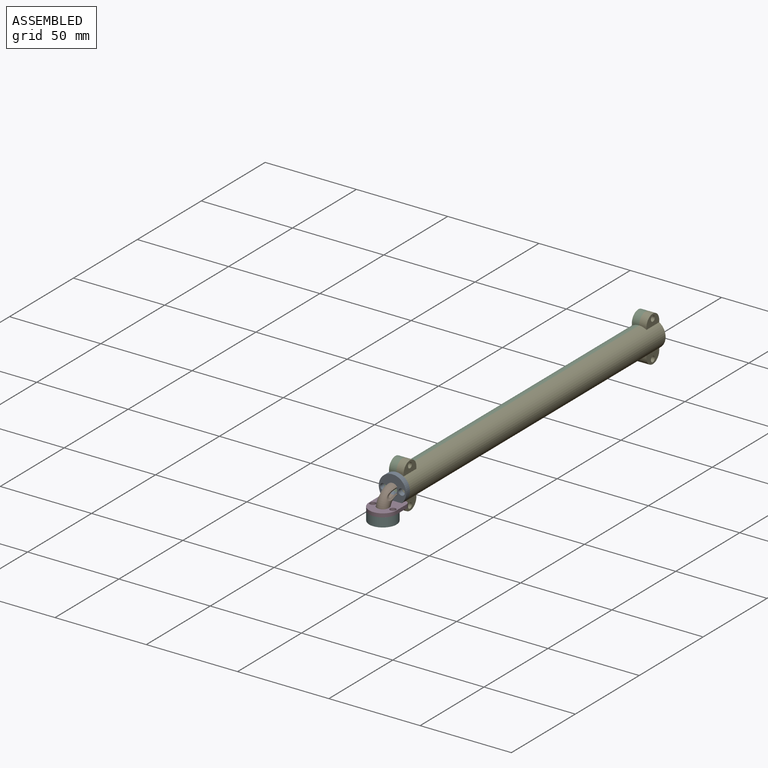
[diagram: assembled view]
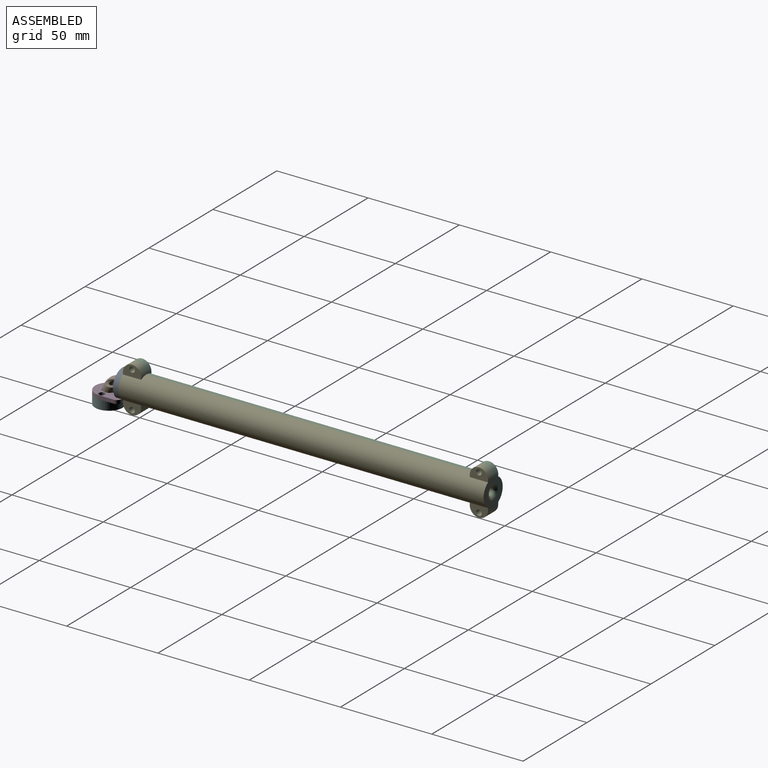
[diagram: assembled view, second angle]
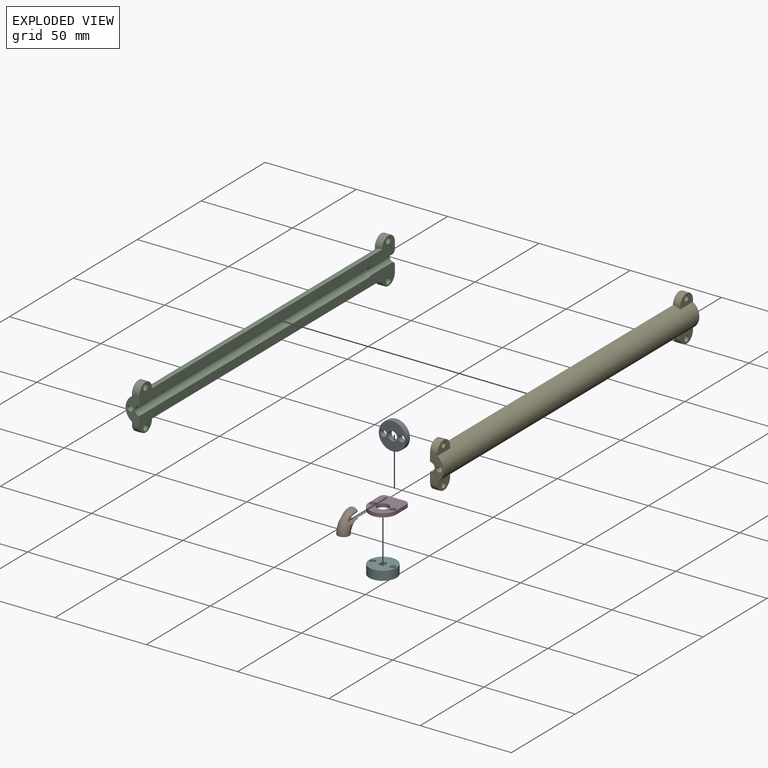
[diagram: exploded view]
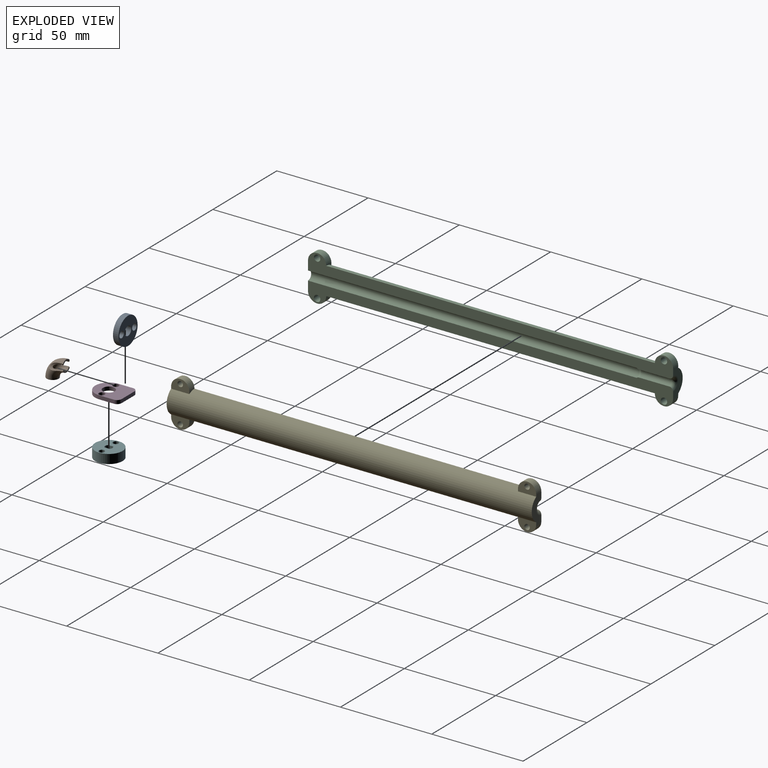
[diagram: exploded view, second angle]
ASSEMBLY  parts=6 mates=5
PART A: 6 faces, bbox 15x3x15 mm
  f0: cylinder r=2.5mm len=5mm, axis (0,-1,0), area 47.1mm2, adj f2,f3
  f1: cylinder r=7.5mm len=15mm, axis (0,-1,0), area 141.4mm2, adj f2,f3
  f2: plane 15x15mm, normal (0,1,0), area 137.8mm2, adj f0,f1,f4,f5
  f3: plane 15x15mm, normal (0,-1,0), area 137.8mm2, adj f0,f1,f4,f5
  f4: cylinder r=1.75mm len=3.5mm, axis (0,-1,0), area 33mm2, adj f2,f3
  f5: cylinder r=1.75mm len=3.5mm, axis (0,-1,0), area 33mm2, adj f2,f3
PART B: 7 faces, bbox 6.5x11.6x11.6 mm
  f0: torus R=7.5mm, axis (1,0,0), area 160mm2, adj f1,f2,f4,f5,f6
  f1: plane 5.31x2.11mm, normal (0,1,0), area 4.4mm2, adj f0,f3,f5,f6
  f2: plane 5.31x2.11mm, normal (0,1,0), area 4.4mm2, adj f0,f3,f5,f6
  f3: torus R=7.5mm, axis (1,0,0), area 185.1mm2, adj f1,f2,f4,f5,f6
  f4: plane 6.5x6.5mm, normal (0,0,-1), area 13.5mm2, adj f0,f3
  f5: cylinder r=3mm len=7.61mm, axis (0,1,0), area 15.5mm2, adj f0,f1,f2,f3
  f6: cylinder r=3mm len=7.61mm, axis (0,1,0), area 15.5mm2, adj f0,f1,f2,f3
PART C: 27 faces, bbox 7.5x200x25 mm
  f0: cylinder r=2.5mm len=180mm, axis (0,-1,0), area 1413.7mm2, adj f3,f6,f7,f26
  f1: cylinder r=7.5mm len=200mm, axis (0,-1,0), area 4543.6mm2, adj f2,f3,f6,f7,f8,f10,f12,f13
  f2: plane 15x7.5mm, normal (0,1,0), area 66.2mm2, adj f1,f6,f7,f11,f13,f14,f16,f25
  f3: plane 15x7.5mm, normal (0,-1,0), area 74.5mm2, adj f0,f1,f4,f6,f7,f9,f10,f17
  f4: cylinder r=1.5mm len=25mm, axis (0,-1,0), area 235.6mm2, adj f3,f5
  f5: plane 3x3mm, normal (0,-1,0), area 7.1mm2, adj f4
  f6: plane 200x10.5mm, normal (1,0,0), area 1068.2mm2, adj f0,f1,f2,f3,f9,f11,f22,f23
  f7: plane 200x10.5mm, normal (1,0,0), area 1068.2mm2, adj f0,f1,f2,f3,f14,f17,f20,f21
  f8: plane 4x1.16mm, normal (0,1,0), area 1.5mm2, adj f1,f9,f10
  f9: cylinder r=5mm len=10mm, axis (1,0,0), area 62.8mm2, adj f3,f6,f8,f10
  f10: plane 10x6.16mm, normal (-1,0,0), area 41.2mm2, adj f1,f3,f8,f9,f23
  f11: cylinder r=5mm len=10mm, axis (1,0,0), area 62.8mm2, adj f2,f6,f12,f13
  f12: plane 4x1.16mm, normal (0,-1,0), area 1.5mm2, adj f1,f11,f13
  f13: plane 10x6.16mm, normal (-1,0,0), area 41.2mm2, adj f1,f2,f11,f12,f22
  f14: cylinder r=5mm len=10mm, axis (1,0,0), area 62.8mm2, adj f2,f7,f15,f16
  f15: plane 4x1.16mm, normal (0,-1,0), area 1.5mm2, adj f1,f14,f16
  f16: plane 10x6.16mm, normal (-1,0,0), area 41.2mm2, adj f1,f2,f14,f15,f21
  f17: cylinder r=5mm len=10mm, axis (1,0,0), area 62.8mm2, adj f3,f7,f18,f19
  f18: plane 4x1.16mm, normal (0,1,0), area 1.5mm2, adj f1,f17,f19
  f19: plane 10x6.16mm, normal (-1,0,0), area 41.2mm2, adj f1,f3,f17,f18,f20
  f20: cylinder r=1.75mm len=4mm, axis (1,0,0), area 44mm2, adj f7,f19
  f21: cylinder r=1.75mm len=4mm, axis (1,0,0), area 44mm2, adj f7,f16
  f22: cylinder r=1.75mm len=4mm, axis (1,0,0), area 44mm2, adj f6,f13
  f23: cylinder r=1.75mm len=4mm, axis (1,0,0), area 44mm2, adj f6,f10
  f24: cylinder r=2mm len=16.68mm, axis (0,1,0), area 104.8mm2, adj f6,f7,f25,f26
  f25: torus R=4mm, axis (0,-1,0), area 26.9mm2, adj f2,f6,f7,f24
  f26: torus R=4mm, axis (0,-1,0), area 9.9mm2, adj f0,f6,f7,f24
PART D: 11 faces, bbox 15x18x2 mm
  f0: cylinder r=7.5mm len=15mm, axis (0,0,-1), area 47.1mm2, adj f1,f4,f5,f6
  f1: plane 8x2mm, normal (-1,0,0), area 16mm2, adj f0,f5,f6,f7
  f2: plane 10x2mm, normal (0,1,0), area 20mm2, adj f5,f6,f7,f8
  f3: cylinder r=3.25mm len=6.5mm, axis (0,0,-1), area 40.8mm2, adj f5,f6
  f4: plane 8x2mm, normal (1,0,0), area 16mm2, adj f0,f5,f6,f8
  f5: plane 18x15mm, normal (0,0,1), area 193.4mm2, adj f0,f1,f2,f3,f4,f7,f8,f9
  f6: plane 18x15mm, normal (0,0,-1), area 193.4mm2, adj f0,f1,f2,f3,f4,f7,f8,f9
  f7: cylinder r=2.5mm len=2.5mm, axis (0,0,1), area 7.9mm2, adj f1,f2,f5,f6
  f8: cylinder r=2.5mm len=2.5mm, axis (0,0,-1), area 7.9mm2, adj f2,f4,f5,f6
  f9: cylinder r=1.62mm len=3.25mm, axis (0,0,-1), area 20.4mm2, adj f5,f6
  f10: cylinder r=1.62mm len=3.25mm, axis (0,0,-1), area 20.4mm2, adj f5,f6
PART E: 27 faces, bbox 7.5x200x25 mm
  f0: cylinder r=2.5mm len=180mm, axis (0,-1,0), area 1413.7mm2, adj f3,f6,f7,f26
  f1: cylinder r=7.5mm len=200mm, axis (0,-1,0), area 4543.6mm2, adj f2,f3,f6,f7,f8,f10,f12,f13
  f2: plane 15x7.5mm, normal (0,1,0), area 66.2mm2, adj f1,f6,f7,f11,f13,f14,f16,f25
  f3: plane 15x7.5mm, normal (0,-1,0), area 74.5mm2, adj f0,f1,f4,f6,f7,f9,f10,f17
  f4: cylinder r=1.5mm len=25mm, axis (0,-1,0), area 235.6mm2, adj f3,f5
  f5: plane 3x3mm, normal (0,-1,0), area 7.1mm2, adj f4
  f6: plane 200x10.5mm, normal (1,0,0), area 1073.3mm2, adj f0,f1,f2,f3,f9,f11,f22,f23
  f7: plane 200x10.5mm, normal (1,0,0), area 1073.3mm2, adj f0,f1,f2,f3,f14,f17,f20,f21
  f8: plane 4x1.16mm, normal (0,1,0), area 1.5mm2, adj f1,f9,f10
  f9: cylinder r=5mm len=10mm, axis (1,0,0), area 62.8mm2, adj f3,f6,f8,f10
  f10: plane 10x6.16mm, normal (-1,0,0), area 43.8mm2, adj f1,f3,f8,f9,f23
  f11: cylinder r=5mm len=10mm, axis (1,0,0), area 62.8mm2, adj f2,f6,f12,f13
  f12: plane 4x1.16mm, normal (0,-1,0), area 1.5mm2, adj f1,f11,f13
  f13: plane 10x6.16mm, normal (-1,0,0), area 43.8mm2, adj f1,f2,f11,f12,f22
  f14: cylinder r=5mm len=10mm, axis (1,0,0), area 62.8mm2, adj f2,f7,f15,f16
  f15: plane 4x1.16mm, normal (0,-1,0), area 1.5mm2, adj f1,f14,f16
  f16: plane 10x6.16mm, normal (-1,0,0), area 43.8mm2, adj f1,f2,f14,f15,f21
  f17: cylinder r=5mm len=10mm, axis (1,0,0), area 62.8mm2, adj f3,f7,f18,f19
  f18: plane 4x1.16mm, normal (0,1,0), area 1.5mm2, adj f1,f17,f19
  f19: plane 10x6.16mm, normal (-1,0,0), area 43.8mm2, adj f1,f3,f17,f18,f20
  f20: cylinder r=1.5mm len=4mm, axis (1,0,0), area 37.7mm2, adj f7,f19
  f21: cylinder r=1.5mm len=4mm, axis (1,0,0), area 37.7mm2, adj f7,f16
  f22: cylinder r=1.5mm len=4mm, axis (1,0,0), area 37.7mm2, adj f6,f13
  f23: cylinder r=1.5mm len=4mm, axis (1,0,0), area 37.7mm2, adj f6,f10
  f24: cylinder r=2mm len=16.68mm, axis (0,1,0), area 104.8mm2, adj f6,f7,f25,f26
  f25: torus R=4mm, axis (0,-1,0), area 26.9mm2, adj f2,f6,f7,f24
  f26: torus R=4mm, axis (0,-1,0), area 9.9mm2, adj f0,f6,f7,f24
PART F: 14 faces, bbox 15x15x5 mm
  f0: cylinder r=2mm len=3mm, axis (0,0,-1), area 10.2mm2, adj f1,f3,f7,f13
  f1: plane 3x2.65mm, normal (-1,0,0), area 7.9mm2, adj f0,f2,f7,f13
  f2: cylinder r=2mm len=3mm, axis (0,0,-1), area 10.2mm2, adj f1,f3,f7,f13
  f3: plane 3x2.65mm, normal (1,0,0), area 7.9mm2, adj f0,f2,f7,f13
  f4: cylinder r=1.5mm len=5mm, axis (0,0,-1), area 47.1mm2, adj f7,f8
  f5: cylinder r=1.5mm len=5mm, axis (0,0,-1), area 47.1mm2, adj f7,f8
  f6: cylinder r=7.5mm len=15mm, axis (0,0,-1), area 235.6mm2, adj f7,f8
  f7: plane 15x15mm, normal (0,0,1), area 151.8mm2, adj f0,f1,f2,f3,f4,f5,f6
  f8: plane 15x15mm, normal (0,0,-1), area 136.6mm2, adj f4,f5,f6,f9,f10,f11,f12
  f9: cylinder r=3mm len=5mm, axis (0,0,-1), area 11.8mm2, adj f8,f10,f12,f13
  f10: plane 3.32x2mm, normal (-1,0,0), area 6.6mm2, adj f8,f9,f11,f13
  f11: cylinder r=3mm len=5mm, axis (0,0,-1), area 11.8mm2, adj f8,f10,f12,f13
  f12: plane 3.32x2mm, normal (1,0,0), area 6.6mm2, adj f8,f9,f11,f13
  f13: plane 6x5mm, normal (0,0,-1), area 15.3mm2, adj f0,f1,f2,f3,f9,f10,f11,f12
PLACE A t=(-52.08,-25.85,4.33)mm
PLACE B t=(-52.08,-25.85,4.33)mm
PLACE C t=(-52.08,-22.85,4.31)mm
PLACE D t=(-52.08,-25.85,4.33)mm
PLACE E rot(axis=(0,1,0),180deg) t=(-52.08,-22.85,4.33)mm
PLACE F t=(-52.08,-33.35,-8.17)mm
MATE cylindrical F.f4 <-> D.f10  axis (0,0,1) through (-57.58,-33.35,-3.17)mm
MATE cylindrical A.f5 <-> E.f4  axis (0,1,0) through (-47.08,-22.85,4.33)mm
MATE cylindrical D.f0 <-> B.f4  axis (0,0,-1) through (-52.08,-33.35,-3.17)mm
MATE fastened C.f7 <-> E.f6  axis (1,0,0) through (-52.08,77.89,-0.92)mm
MATE cylindrical B.f1 <-> A.f0  axis (0,1,0) through (-52.08,-25.85,4.33)mm
